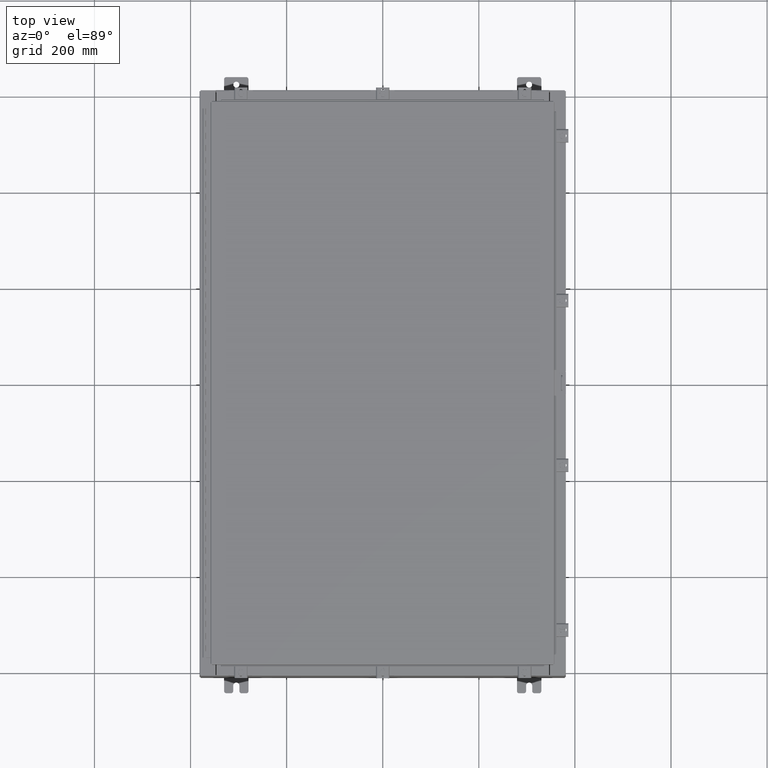
[diagram: clean part render]
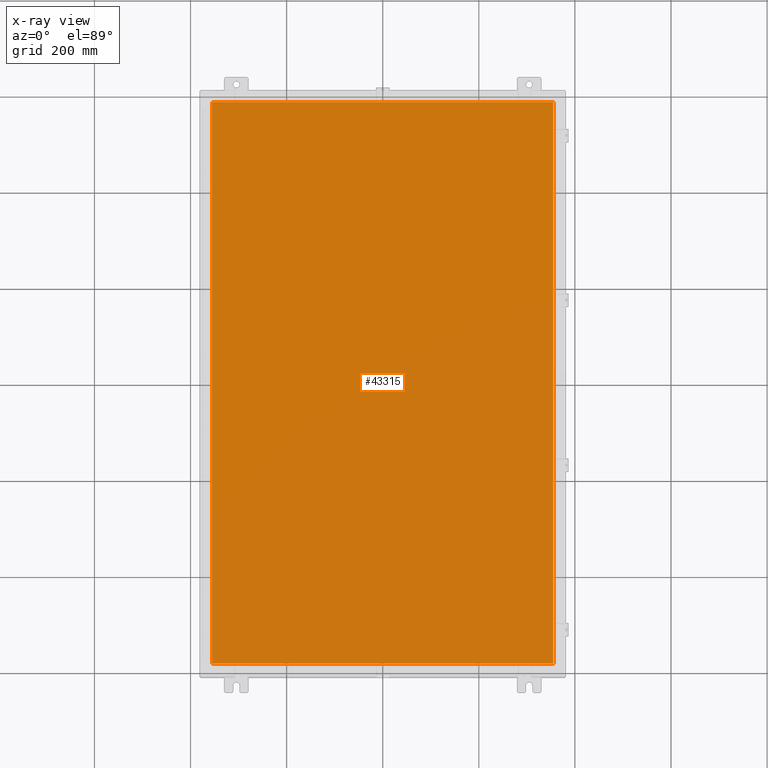
[diagram: x-ray — body ghosted, one internal face saturated and labeled with its STEP entity id]
A machine part, top view, then the same camera in x-ray: the body is ghosted and one INTERNAL B-rep face — a face not visible from any outside direction — is saturated and labeled: STEP entity #43315.
In plain terms, the highlighted planar face has unit normal (0, 0, -1).
Its self-contained STEP definition (entity closure, byte-faithful):
#534 = DIRECTION ( 'NONE',  ( -1.000000000000000000, 0.0000000000000000000, -0.0000000000000000000 ) ) ;
#2242 = LINE ( 'NONE', #35522, #41629 ) ;
#3431 = VERTEX_POINT ( 'NONE', #26499 ) ;
#4262 = DIRECTION ( 'NONE',  ( 1.000000000000000000, -0.0000000000000000000, -0.0000000000000000000 ) ) ;
#7632 = DIRECTION ( 'NONE',  ( -1.000000000000000000, -0.0000000000000000000, -0.0000000000000000000 ) ) ;
#10726 = EDGE_LOOP ( 'NONE', ( #34993, #38268, #14207, #46722 ) ) ;
#14207 = ORIENTED_EDGE ( 'NONE', *, *, #32812, .F. ) ;
#15658 = CARTESIAN_POINT ( 'NONE',  ( 13.99029999999999800, 23.00630000000001000, -0.07469999999999804600 ) ) ;
#17771 = AXIS2_PLACEMENT_3D ( 'NONE', #20950, #25114, #534 ) ;
#17817 = EDGE_CURVE ( 'NONE', #36110, #49017, #2242, .T. ) ;
#20557 = VECTOR ( 'NONE', #7632, 39.37007874015748100 ) ;
#20950 = CARTESIAN_POINT ( 'NONE',  ( 0.0000000000000000000, 0.0000000000000000000, -0.07470000000000000300 ) ) ;
#21731 = DIRECTION ( 'NONE',  ( 0.0000000000000000000, 1.000000000000000000, 0.0000000000000000000 ) ) ;
#22809 = CARTESIAN_POINT ( 'NONE',  ( -13.99029999999999800, 23.00630000000000300, -0.07470000000000000300 ) ) ;
#23524 = CARTESIAN_POINT ( 'NONE',  ( 13.99029999999999800, 23.00630000000000300, -0.07470000000000000300 ) ) ;
#25114 = DIRECTION ( 'NONE',  ( 0.0000000000000000000, 0.0000000000000000000, -1.000000000000000000 ) ) ;
#26260 = LINE ( 'NONE', #49623, #35698 ) ;
#26499 = CARTESIAN_POINT ( 'NONE',  ( -13.99029999999999800, -23.00630000000000000, -0.07470000000000000300 ) ) ;
#32668 = LINE ( 'NONE', #15658, #20557 ) ;
#32812 = EDGE_CURVE ( 'NONE', #44201, #3431, #26260, .T. ) ;
#34993 = ORIENTED_EDGE ( 'NONE', *, *, #17817, .F. ) ;
#35522 = CARTESIAN_POINT ( 'NONE',  ( 13.99029999999999800, -23.00630000000000300, -0.07470000000000019700 ) ) ;
#35698 = VECTOR ( 'NONE', #41650, 39.37007874015748100 ) ;
#36110 = VERTEX_POINT ( 'NONE', #43935 ) ;
#37032 = EDGE_CURVE ( 'NONE', #3431, #36110, #50691, .T. ) ;
#38268 = ORIENTED_EDGE ( 'NONE', *, *, #37032, .F. ) ;
#39937 = VECTOR ( 'NONE', #4262, 39.37007874015748100 ) ;
#40623 = FACE_OUTER_BOUND ( 'NONE', #10726, .T. ) ;
#41629 = VECTOR ( 'NONE', #21731, 39.37007874015748100 ) ;
#41650 = DIRECTION ( 'NONE',  ( 0.0000000000000000000, -1.000000000000000000, 0.0000000000000000000 ) ) ;
#43315 = ADVANCED_FACE ( 'NONE', ( #40623 ), #45176, .T. ) ;
#43935 = CARTESIAN_POINT ( 'NONE',  ( 13.99029999999999800, -23.00630000000000000, -0.07470000000000000300 ) ) ;
#44201 = VERTEX_POINT ( 'NONE', #22809 ) ;
#44791 = CARTESIAN_POINT ( 'NONE',  ( -13.99029999999999800, -23.00630000000000300, -0.07469999999999804600 ) ) ;
#45176 = PLANE ( 'NONE',  #17771 ) ;
#46722 = ORIENTED_EDGE ( 'NONE', *, *, #48188, .F. ) ;
#48188 = EDGE_CURVE ( 'NONE', #49017, #44201, #32668, .T. ) ;
#49017 = VERTEX_POINT ( 'NONE', #23524 ) ;
#49623 = CARTESIAN_POINT ( 'NONE',  ( -13.99029999999999800, 23.00630000000000300, -0.07470000000000019700 ) ) ;
#50691 = LINE ( 'NONE', #44791, #39937 ) ;